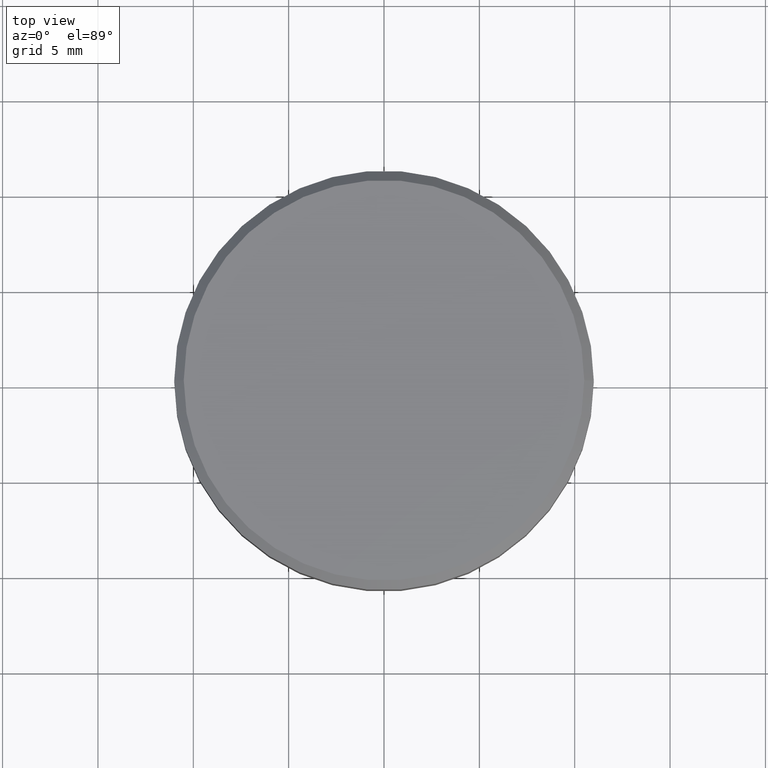
[diagram: clean part render]
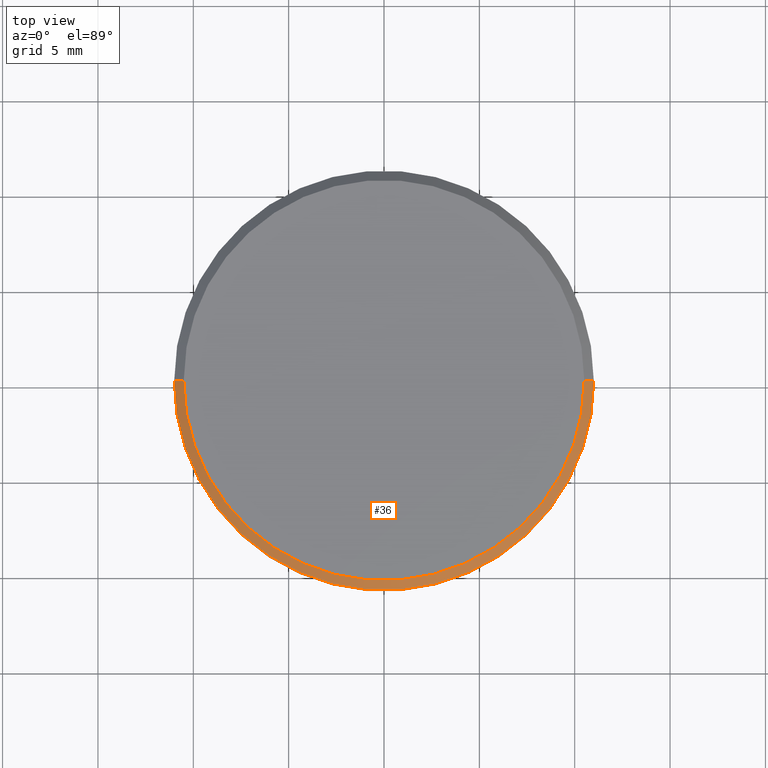
[diagram: same view with one face highlighted and labeled with its STEP entity id]
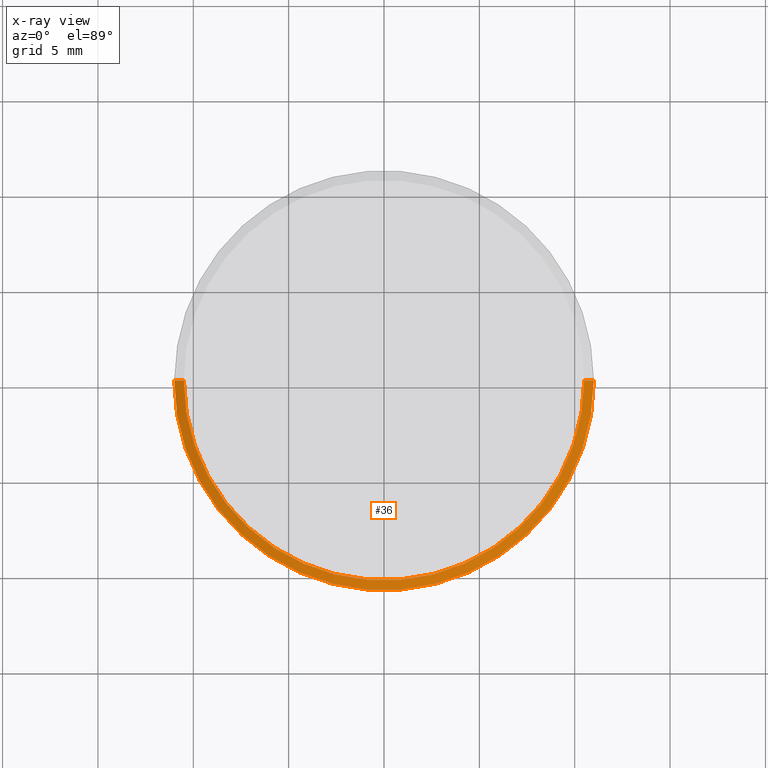
[diagram: x-ray of the same camera — body ghosted, the highlighted face saturated]
A machine part, top view. The second image highlights one B-rep face of the part: STEP entity #36.
The next image is the same camera in x-ray: the body ghosted, the highlighted face saturated — about 0% of this face is hidden behind the body in this view.
In plain terms, the highlighted conical surface has half-angle 45 deg.
Its self-contained STEP definition (entity closure, byte-faithful):
#11 = AXIS2_PLACEMENT_3D ( 'NONE', #70, #57, #294 ) ;
#12 = CARTESIAN_POINT ( 'NONE',  ( 10.49999999999999822, 1.316495309083404420E-15, 0.000000000000000000 ) ) ;
#14 = CARTESIAN_POINT ( 'NONE',  ( -11.00000000000000000, 1.347111479062088405E-15, -0.5000000000000004441 ) ) ;
#22 = CARTESIAN_POINT ( 'NONE',  ( -10.49999999999999822, 0.000000000000000000, 0.000000000000000000 ) ) ;
#29 = CONICAL_SURFACE ( 'NONE', #304, 10.49999999999999822, 0.7853981633974482790 ) ;
#36 = ADVANCED_FACE ( 'NONE', ( #58 ), #29, .T. ) ;
#41 = EDGE_LOOP ( 'NONE', ( #205, #126, #370, #341 ) ) ;
#57 = DIRECTION ( 'NONE',  ( 0.000000000000000000, 0.000000000000000000, -1.000000000000000000 ) ) ;
#58 = FACE_OUTER_BOUND ( 'NONE', #41, .T. ) ;
#61 = EDGE_CURVE ( 'NONE', #189, #135, #212, .T. ) ;
#66 = EDGE_CURVE ( 'NONE', #213, #135, #133, .T. ) ;
#70 = CARTESIAN_POINT ( 'NONE',  ( 0.000000000000000000, 0.000000000000000000, -0.5000000000000004441 ) ) ;
#87 = DIRECTION ( 'NONE',  ( -0.000000000000000000, -0.000000000000000000, 1.000000000000000000 ) ) ;
#100 = DIRECTION ( 'NONE',  ( -0.7071067811865474617, 0.000000000000000000, -0.7071067811865474617 ) ) ;
#101 = AXIS2_PLACEMENT_3D ( 'NONE', #266, #87, #298 ) ;
#126 = ORIENTED_EDGE ( 'NONE', *, *, #401, .F. ) ;
#133 = CIRCLE ( 'NONE', #11, 11.00000000000000000 ) ;
#135 = VERTEX_POINT ( 'NONE', #14 ) ;
#156 = CARTESIAN_POINT ( 'NONE',  ( 0.000000000000000000, 0.000000000000000000, 0.000000000000000000 ) ) ;
#175 = DIRECTION ( 'NONE',  ( 0.7071067811865474617, 8.659560562354932858E-17, -0.7071067811865474617 ) ) ;
#179 = VECTOR ( 'NONE', #175, 1000.000000000000114 ) ;
#180 = LINE ( 'NONE', #274, #179 ) ;
#181 = DIRECTION ( 'NONE',  ( -1.000000000000000000, 0.000000000000000000, 0.000000000000000000 ) ) ;
#186 = CARTESIAN_POINT ( 'NONE',  ( -10.49999999999999822, 0.000000000000000000, 0.000000000000000000 ) ) ;
#189 = VERTEX_POINT ( 'NONE', #22 ) ;
#200 = CIRCLE ( 'NONE', #101, 10.49999999999999822 ) ;
#201 = EDGE_CURVE ( 'NONE', #267, #213, #180, .T. ) ;
#205 = ORIENTED_EDGE ( 'NONE', *, *, #201, .F. ) ;
#212 = LINE ( 'NONE', #186, #351 ) ;
#213 = VERTEX_POINT ( 'NONE', #269 ) ;
#266 = CARTESIAN_POINT ( 'NONE',  ( 0.000000000000000000, 0.000000000000000000, 0.000000000000000000 ) ) ;
#267 = VERTEX_POINT ( 'NONE', #12 ) ;
#269 = CARTESIAN_POINT ( 'NONE',  ( 11.00000000000000000, 0.000000000000000000, -0.5000000000000004441 ) ) ;
#274 = CARTESIAN_POINT ( 'NONE',  ( 10.49999999999999822, 1.285879139104720633E-15, 0.000000000000000000 ) ) ;
#294 = DIRECTION ( 'NONE',  ( 1.000000000000000000, 0.000000000000000000, 0.000000000000000000 ) ) ;
#298 = DIRECTION ( 'NONE',  ( 1.000000000000000000, 0.000000000000000000, 0.000000000000000000 ) ) ;
#304 = AXIS2_PLACEMENT_3D ( 'NONE', #156, #409, #181 ) ;
#341 = ORIENTED_EDGE ( 'NONE', *, *, #66, .F. ) ;
#351 = VECTOR ( 'NONE', #100, 1000.000000000000114 ) ;
#370 = ORIENTED_EDGE ( 'NONE', *, *, #61, .T. ) ;
#401 = EDGE_CURVE ( 'NONE', #189, #267, #200, .T. ) ;
#409 = DIRECTION ( 'NONE',  ( 0.000000000000000000, 0.000000000000000000, -1.000000000000000000 ) ) ;